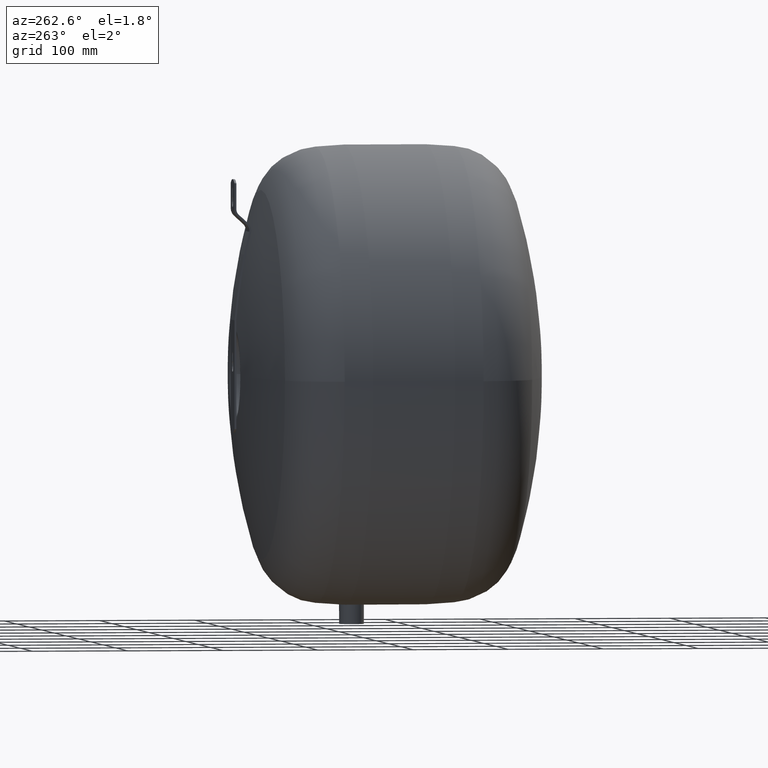
[diagram: clean part render]
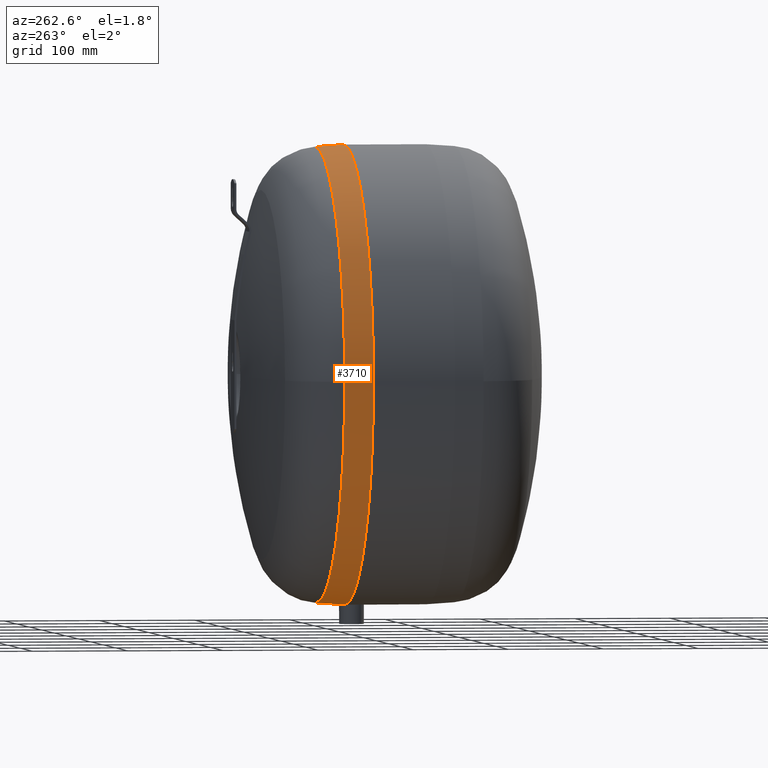
[diagram: same view with one face highlighted and labeled with its STEP entity id]
A machine part, auxiliary view. The second image highlights one B-rep face of the part: STEP entity #3710.
In plain terms, the highlighted conical surface has half-angle 3.814 deg.
Its self-contained STEP definition (entity closure, byte-faithful):
#2619=CARTESIAN_POINT('',(3.208469E-014,8.000000000000085,500.00000000000006));
#2620=VERTEX_POINT('',#2619);
#2621=CARTESIAN_POINT('',(3.747295E-014,38.000000000000085,498.00000000000006));
#2622=VERTEX_POINT('',#2621);
#2623=CARTESIAN_POINT('',(3.208469E-014,8.000000000000087,500.00000000000006));
#2624=DIRECTION('',(1.792111E-016,0.997785157856609,-0.066519010523774));
#2625=VECTOR('',#2624,30.066592756745816);
#2626=LINE('',#2623,#2625);
#2627=EDGE_CURVE('',#2620,#2622,#2626,.T.);
#2638=CARTESIAN_POINT('',(4.036945E-015,12.999999999999973,20.333333333333382));
#2639=VERTEX_POINT('',#2638);
#2651=CARTESIAN_POINT('',(3.747295E-014,38.000000000000092,22.000000000000053));
#2652=VERTEX_POINT('',#2651);
#2653=CARTESIAN_POINT('',(3.298273E-014,12.999999999999973,20.333333333333385));
#2654=DIRECTION('',(1.792111E-016,0.997785157856609,0.066519010523774));
#2655=VECTOR('',#2654,25.055493963954969);
#2656=LINE('',#2653,#2655);
#2657=EDGE_CURVE('',#2639,#2652,#2656,.T.);
#2693=CARTESIAN_POINT('',(-237.99999999999997,38.000000000000128,260.00000000000006));
#2694=VERTEX_POINT('',#2693);
#2695=CARTESIAN_POINT('',(2.290014E-014,38.000000000000085,260.00000000000006));
#2696=DIRECTION('',(0.0,-1.0,0.0));
#2697=DIRECTION('',(0.0,0.0,1.0));
#2698=AXIS2_PLACEMENT_3D('',#2695,#2696,#2697);
#2699=CIRCLE('',#2698,238.0);
#2700=EDGE_CURVE('',#2694,#2652,#2699,.T.);
#3275=CARTESIAN_POINT('',(-10.246950765959355,8.000000000000085,20.218849781722867));
#3276=VERTEX_POINT('',#3275);
#3295=CARTESIAN_POINT('',(4.107825E-015,12.999999999999972,20.3333333333334));
#3296=CARTESIAN_POINT('',(-1.628317409958301,12.999999999999972,20.3333333333334));
#3297=CARTESIAN_POINT('',(-3.365431185533109,12.67535645863876,20.329992390162516));
#3298=CARTESIAN_POINT('',(-6.56214767748543,11.354690938704081,20.308133104105167));
#3299=CARTESIAN_POINT('',(-8.021743275096501,10.358667627861394,20.28866452677525));
#3300=CARTESIAN_POINT('',(-9.549835330289232,8.836316341382769,20.245580707638936));
#3301=CARTESIAN_POINT('',(-9.909902838528566,8.431714189769068,20.233253388991443));
#3302=CARTESIAN_POINT('',(-10.246950765959355,8.000000000000085,20.218849781722867));
#3303=B_SPLINE_CURVE_WITH_KNOTS('',3,(#3295,#3296,#3297,#3298,#3299,#3300,#3301,#3302),.UNSPECIFIED.,.F.,.U.,(4,2,2,4),(1.955138815618898,2.44363403860639,2.932129261593881,3.090861006960759),.UNSPECIFIED.);
#3304=EDGE_CURVE('',#2639,#3276,#3303,.T.);
#3325=CARTESIAN_POINT('',(1.738941E-014,8.000000000000085,260.00000000000006));
#3326=DIRECTION('',(0.0,-1.0,0.0));
#3327=DIRECTION('',(0.0,0.0,1.0));
#3328=AXIS2_PLACEMENT_3D('',#3325,#3326,#3327);
#3329=CIRCLE('',#3328,240.0);
#3330=EDGE_CURVE('',#2620,#3276,#3329,.T.);
#3686=CARTESIAN_POINT('',(2.290014E-014,38.000000000000085,260.00000000000006));
#3687=DIRECTION('',(0.0,-1.0,0.0));
#3688=DIRECTION('',(0.0,0.0,1.0));
#3689=AXIS2_PLACEMENT_3D('',#3686,#3687,#3688);
#3690=CIRCLE('',#3689,238.0);
#3691=EDGE_CURVE('',#2622,#2694,#3690,.T.);
#3697=CARTESIAN_POINT('',(2.014477E-014,23.000000000000085,260.00000000000006));
#3698=DIRECTION('',(-1.836910E-016,-1.0,0.0));
#3699=DIRECTION('',(0.0,0.0,1.0));
#3700=AXIS2_PLACEMENT_3D('',#3697,#3698,#3699);
#3701=CONICAL_SURFACE('',#3700,239.0,3.814074834290341);
#3702=ORIENTED_EDGE('',*,*,#2627,.T.);
#3703=ORIENTED_EDGE('',*,*,#3691,.T.);
#3704=ORIENTED_EDGE('',*,*,#2700,.T.);
#3705=ORIENTED_EDGE('',*,*,#2657,.F.);
#3706=ORIENTED_EDGE('',*,*,#3304,.T.);
#3707=ORIENTED_EDGE('',*,*,#3330,.F.);
#3708=EDGE_LOOP('',(#3702,#3703,#3704,#3705,#3706,#3707));
#3709=FACE_OUTER_BOUND('',#3708,.T.);
#3710=ADVANCED_FACE('',(#3709),#3701,.T.);